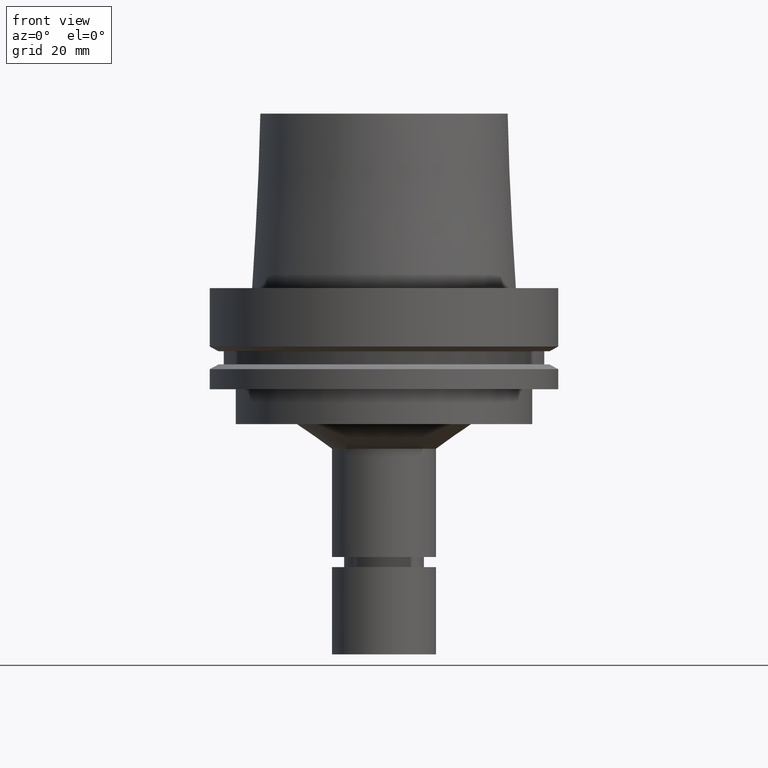
[diagram: clean part render]
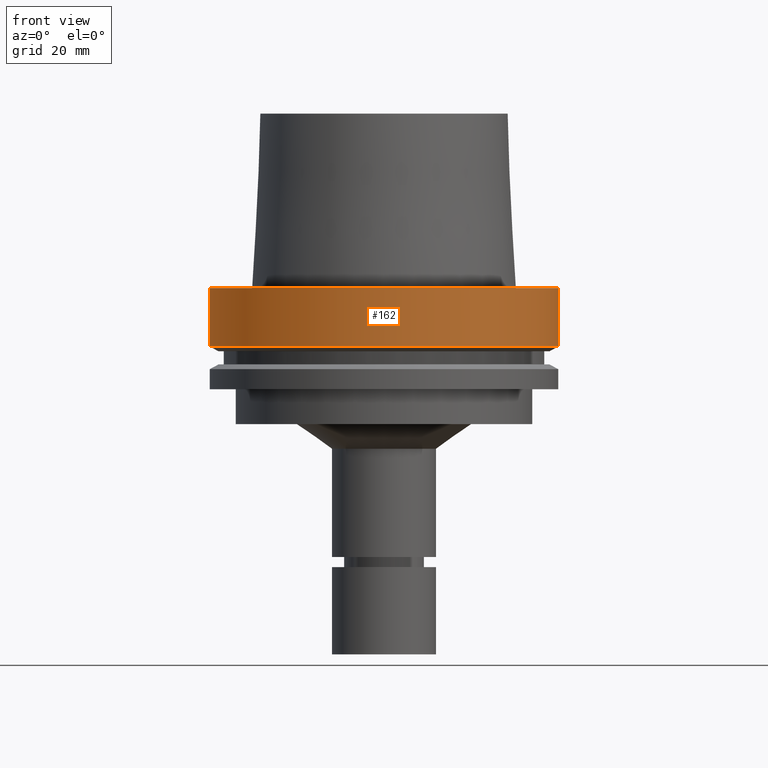
[diagram: same view with one face highlighted and labeled with its STEP entity id]
A machine part, front view. The second image highlights one B-rep face of the part: STEP entity #162.
In plain terms, the highlighted cylindrical surface (bore or boss wall) has radius 50 mm, axis along (0, 0, -1).
Its self-contained STEP definition (entity closure, byte-faithful):
#84=EDGE_CURVE('Unnamed[1]',#227,#227,#228,.T.);
#136=EDGE_CURVE('Unnamed[1]',#306,#306,#307,.T.);
#162=ADVANCED_FACE('Unnamed[1]',(#347,#348),#349,.T.);
#227=VERTEX_POINT('',#428);
#228=CIRCLE('',#429,50.0);
#306=VERTEX_POINT('',#527);
#307=CIRCLE('',#528,50.0);
#347=FACE_BOUND('',#577,.T.);
#348=FACE_BOUND('',#578,.T.);
#349=CYLINDRICAL_SURFACE('',#579,50.0);
#428=CARTESIAN_POINT('',(1.0257889421431E-015,50.0,-16.75240474));
#429=AXIS2_PLACEMENT_3D('',#661,#662,#663);
#527=CARTESIAN_POINT('',(-1.81547968506605E-031,50.0,-9.76766004263236E-016));
#528=AXIS2_PLACEMENT_3D('',#747,#748,#749);
#577=EDGE_LOOP('',(#795));
#578=EDGE_LOOP('',(#796));
#579=AXIS2_PLACEMENT_3D('',#797,#798,#799);
#661=CARTESIAN_POINT('',(1.0257889421431E-015,2.05157788428619E-015,-16.75240474));
#662=DIRECTION('',(6.12323399573677E-017,1.22464679914735E-016,-1.0));
#663=DIRECTION('',(-1.23259516440783E-032,1.0,1.22464679914735E-016));
#747=CARTESIAN_POINT('',(0.0,0.0,0.0));
#748=DIRECTION('',(6.12323399573677E-017,1.22464679914735E-016,-1.0));
#749=DIRECTION('',(-1.23259516440783E-032,1.0,1.22464679914735E-016));
#795=ORIENTED_EDGE('',*,*,#84,.F.);
#796=ORIENTED_EDGE('',*,*,#136,.T.);
#797=CARTESIAN_POINT('',(5.12894471071548E-016,1.0257889421431E-015,-8.37620236999999));
#798=DIRECTION('',(6.12323399573677E-017,1.22464679914735E-016,-1.0));
#799=DIRECTION('',(-1.23259516440783E-032,1.0,1.22464679914735E-016));